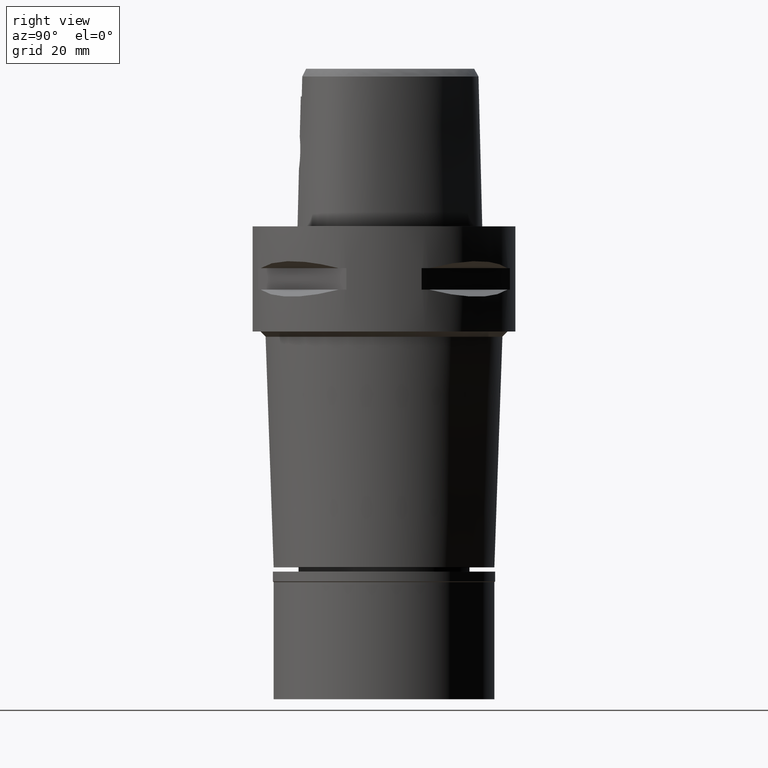
[diagram: clean part render]
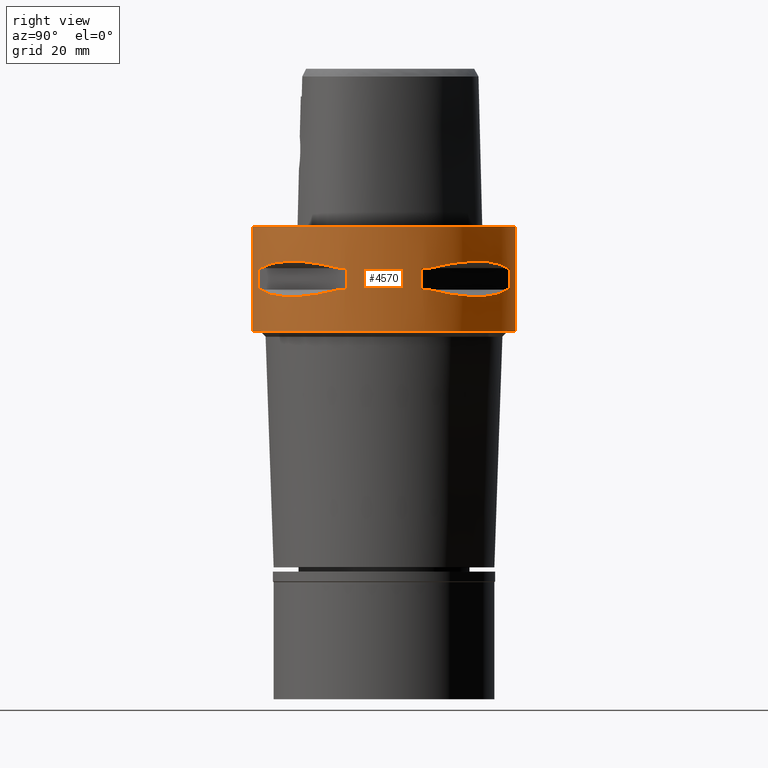
[diagram: same view with one face highlighted and labeled with its STEP entity id]
A machine part, right view. The second image highlights one B-rep face of the part: STEP entity #4570.
In plain terms, the highlighted cylindrical surface (partial cylindrical patch) has radius 25 mm, axis along (0, 0, -1).
Its self-contained STEP definition (entity closure, byte-faithful):
#9 = CARTESIAN_POINT ( 'NONE',  ( 21.20561591939435786, 13.24197703503935486, -13.00691327926270446 ) ) ;
#40 = CIRCLE ( 'NONE', #4211, 24.99999999999999645 ) ;
#85 = B_SPLINE_CURVE_WITH_KNOTS ( 'NONE', 3,
 ( #3754, #4079, #269, #3355, #4123, #9, #699, #4103, #3704, #4867, #3007, #4817, #2986, #2521, #1889, #1051, #1021, #1104, #4030, #298, #1496, #1075, #2593, #4491 ),
 .UNSPECIFIED., .F., .F.,
 ( 4, 1, 1, 1, 1, 1, 2, 2, 2, 1, 1, 1, 1, 1, 2, 2, 4 ),
 ( 0.0000000000000000000, 0.1249999999999982236, 0.1874999999999974465, 0.2187499999999970302, 0.2343749999999969469, 0.2421874999999968081, 0.2460937499999968359, 0.2499999999999968914, 0.4999999999999973355, 0.6249999999999973355, 0.6874999999999976685, 0.7187499999999978906, 0.7343749999999980016, 0.7421874999999980016, 0.7460937499999978906, 0.7499999999999978906, 1.000000000000000000 ),
 .UNSPECIFIED. ) ;
#216 = EDGE_CURVE ( 'NONE', #3294, #2369, #1429, .T. ) ;
#221 = CARTESIAN_POINT ( 'NONE',  ( 0.0000000000000000000, 1.275163479612000028E-14, -12.05000000000000071 ) ) ;
#238 = VERTEX_POINT ( 'NONE', #3075 ) ;
#269 = CARTESIAN_POINT ( 'NONE',  ( 22.58788056560981516, 10.78455809748034788, -12.56798337783676267 ) ) ;
#278 = EDGE_CURVE ( 'NONE', #2553, #3486, #4148, .T. ) ;
#298 = CARTESIAN_POINT ( 'NONE',  ( 13.62920640916679993, 20.95817024473859291, -13.06397973560673265 ) ) ;
#311 = CARTESIAN_POINT ( 'NONE',  ( 10.36314631865839964, -22.82438450743505598, -7.507504930511911923 ) ) ;
#335 = CARTESIAN_POINT ( 'NONE',  ( 20.56020460723486565, -14.22535762328174691, -13.14488865845287080 ) ) ;
#346 = DIRECTION ( 'NONE',  ( 0.0000000000000000000, 0.0000000000000000000, 1.000000000000000000 ) ) ;
#352 = CARTESIAN_POINT ( 'NONE',  ( 22.82438450745431524, 10.36314631860615876, -7.507504930525397135 ) ) ;
#391 = CIRCLE ( 'NONE', #4401, 24.99999999999999645 ) ;
#406 = CARTESIAN_POINT ( 'NONE',  ( 16.42437865151178045, 18.93096040781560063, -6.622496303226939496 ) ) ;
#535 = AXIS2_PLACEMENT_3D ( 'NONE', #4347, #4269, #4639 ) ;
#564 = CARTESIAN_POINT ( 'NONE',  ( 0.0000000000000000000, 1.275163479612000028E-14, -12.05000000000000071 ) ) ;
#609 = CARTESIAN_POINT ( 'NONE',  ( 7.159921374230999724, 23.95277699797999915, -12.05000000000000071 ) ) ;
#611 = ORIENTED_EDGE ( 'NONE', *, *, #2390, .T. ) ;
#620 = DIRECTION ( 'NONE',  ( 0.9581110799190402094, -0.2863968549694120291, 0.0000000000000000000 ) ) ;
#626 = LINE ( 'NONE', #3575, #2889 ) ;
#634 = ORIENTED_EDGE ( 'NONE', *, *, #278, .F. ) ;
#643 = DIRECTION ( 'NONE',  ( 0.9382863520558295534, 0.3458593956303108730, 0.0000000000000000000 ) ) ;
#657 = ORIENTED_EDGE ( 'NONE', *, *, #4472, .T. ) ;
#658 = CARTESIAN_POINT ( 'NONE',  ( 11.99631184318432275, -22.00754773654066199, -7.175632472871789069 ) ) ;
#672 = CARTESIAN_POINT ( 'NONE',  ( 8.646484890751999330, 23.45715880140000209, -12.05000000000000071 ) ) ;
#699 = CARTESIAN_POINT ( 'NONE',  ( 21.09754014381971388, 13.41274673326716282, -13.03250796600833716 ) ) ;
#713 = CARTESIAN_POINT ( 'NONE',  ( 10.78455809745186755, -22.58788056562029922, -12.56798337782941566 ) ) ;
#725 = CARTESIAN_POINT ( 'NONE',  ( 0.0000000000000000000, 1.275163479612000028E-14, -7.950000000000000178 ) ) ;
#753 = CARTESIAN_POINT ( 'NONE',  ( 15.02698525050126044, 20.06074199764951871, -6.733118915116992120 ) ) ;
#760 = CARTESIAN_POINT ( 'NONE',  ( 16.43106916202457057, -18.92421359264944769, -13.37747608848233760 ) ) ;
#767 = CARTESIAN_POINT ( 'NONE',  ( 0.0000000000000000000, 1.275163479612000028E-14, -7.950000000000000178 ) ) ;
#773 = CARTESIAN_POINT ( 'NONE',  ( 23.45715880140000209, 8.646484890751999330, -7.949999999998999201 ) ) ;
#780 = CIRCLE ( 'NONE', #4627, 25.00000000000000000 ) ;
#805 = CARTESIAN_POINT ( 'NONE',  ( 13.48572973711064193, -21.05082155772163688, -13.04323036965292637 ) ) ;
#863 = DIRECTION ( 'NONE',  ( 0.2863968549694120291, 0.9581110799190402094, 0.0000000000000000000 ) ) ;
#866 = EDGE_CURVE ( 'NONE', #1522, #4118, #948, .T. ) ;
#884 = DIRECTION ( 'NONE',  ( 0.0000000000000000000, 0.0000000000000000000, -1.000000000000000000 ) ) ;
#934 = VECTOR ( 'NONE', #3006, 1000.000000000000000 ) ;
#948 = LINE ( 'NONE', #2559, #2480 ) ;
#951 = EDGE_CURVE ( 'NONE', #1349, #1798, #1828, .T. ) ;
#952 = ORIENTED_EDGE ( 'NONE', *, *, #866, .T. ) ;
#1008 = EDGE_CURVE ( 'NONE', #1715, #2778, #2840, .T. ) ;
#1021 = CARTESIAN_POINT ( 'NONE',  ( 13.90573822668135406, 20.77616787493428774, -13.10257122103294058 ) ) ;
#1051 = CARTESIAN_POINT ( 'NONE',  ( 14.22535762328483067, 20.56020460723039278, -13.14488865845230592 ) ) ;
#1075 = CARTESIAN_POINT ( 'NONE',  ( 12.03062603423778754, 21.99328990739221013, -12.83394786307672675 ) ) ;
#1104 = CARTESIAN_POINT ( 'NONE',  ( 13.74471461761685198, 20.88268233906084248, -13.08031795579737455 ) ) ;
#1114 = CARTESIAN_POINT ( 'NONE',  ( 20.88268233906207172, -13.74471461761599400, -13.08031795579753087 ) ) ;
#1124 = CARTESIAN_POINT ( 'NONE',  ( 0.0000000000000000000, 1.275163479612000028E-14, -7.950000000000000178 ) ) ;
#1136 = CARTESIAN_POINT ( 'NONE',  ( 20.77616787493668937, -13.90573822667970916, -13.10257122103325145 ) ) ;
#1248 = CARTESIAN_POINT ( 'NONE',  ( 0.0000000000000000000, 1.275163479612000028E-14, -7.950000000000000178 ) ) ;
#1252 = ORIENTED_EDGE ( 'NONE', *, *, #2179, .F. ) ;
#1291 = CARTESIAN_POINT ( 'NONE',  ( 0.0000000000000000000, -25.00000000000000000, -20.00000000000000000 ) ) ;
#1292 = EDGE_CURVE ( 'NONE', #2553, #2476, #2865, .T. ) ;
#1340 = CARTESIAN_POINT ( 'NONE',  ( 0.0000000000000000000, 25.00000000000000000, 0.0000000000000000000 ) ) ;
#1349 = VERTEX_POINT ( 'NONE', #4506 ) ;
#1351 = CARTESIAN_POINT ( 'NONE',  ( 20.06074199769976829, -15.02698525043415145, -6.733118915137214167 ) ) ;
#1379 = ORIENTED_EDGE ( 'NONE', *, *, #2713, .T. ) ;
#1423 = FACE_BOUND ( 'NONE', #3070, .T. ) ;
#1429 = LINE ( 'NONE', #2549, #934 ) ;
#1434 = ORIENTED_EDGE ( 'NONE', *, *, #3957, .T. ) ;
#1496 = CARTESIAN_POINT ( 'NONE',  ( 13.60713573003037880, 20.97251445226597966, -13.06082541678103404 ) ) ;
#1519 = DIRECTION ( 'NONE',  ( 0.3458593956303108730, 0.9382863520558295534, 0.0000000000000000000 ) ) ;
#1522 = VERTEX_POINT ( 'NONE', #4693 ) ;
#1554 = CARTESIAN_POINT ( 'NONE',  ( 18.30096971348435630, -17.05439749817190176, -13.37751056790094850 ) ) ;
#1563 = CARTESIAN_POINT ( 'NONE',  ( 7.159921374230999724, -23.95277699797999915, -7.950000000000000178 ) ) ;
#1612 = ORIENTED_EDGE ( 'NONE', *, *, #2851, .T. ) ;
#1641 = VERTEX_POINT ( 'NONE', #3236 ) ;
#1689 = EDGE_LOOP ( 'NONE', ( #2679, #1943, #4505, #3856, #4812, #634, #4090, #2241 ) ) ;
#1709 = B_SPLINE_CURVE_WITH_KNOTS ( 'NONE', 3,
 ( #2322, #352, #2709, #4497, #4128, #406, #753, #3760, #3080, #3361 ),
 .UNSPECIFIED., .F., .F.,
 ( 4, 2, 2, 2, 4 ),
 ( 0.0000000000000000000, 0.2500000000000000000, 0.5000000000000000000, 0.7500000000000000000, 1.000000000000000000 ),
 .UNSPECIFIED. ) ;
#1715 = VERTEX_POINT ( 'NONE', #3583 ) ;
#1716 = CARTESIAN_POINT ( 'NONE',  ( 23.45715880140000209, -8.646484890751999330, -7.949999999998999201 ) ) ;
#1732 = DIRECTION ( 'NONE',  ( 0.0000000000000000000, 0.0000000000000000000, -1.000000000000000000 ) ) ;
#1738 = CARTESIAN_POINT ( 'NONE',  ( 23.45715880140000209, -8.646484890751999330, -7.949999999998999201 ) ) ;
#1742 = EDGE_CURVE ( 'NONE', #2476, #2164, #2649, .T. ) ;
#1746 = CARTESIAN_POINT ( 'NONE',  ( 23.95277699797999915, -7.159921374230999724, -12.05000000000000071 ) ) ;
#1783 = FACE_OUTER_BOUND ( 'NONE', #2607, .T. ) ;
#1798 = VERTEX_POINT ( 'NONE', #4773 ) ;
#1806 = DIRECTION ( 'NONE',  ( 0.0000000000000000000, 0.0000000000000000000, -1.000000000000000000 ) ) ;
#1813 = AXIS2_PLACEMENT_3D ( 'NONE', #4387, #4365, #643 ) ;
#1828 = LINE ( 'NONE', #609, #3736 ) ;
#1849 = CARTESIAN_POINT ( 'NONE',  ( 23.45715880140000209, -8.646484890751999330, -12.05000000000000071 ) ) ;
#1874 = CARTESIAN_POINT ( 'NONE',  ( 19.18226349639588690, -16.07509500018327131, -13.33749867752016449 ) ) ;
#1889 = CARTESIAN_POINT ( 'NONE',  ( 14.85488513038957592, 20.11654071401955335, -13.22076716108393413 ) ) ;
#1922 = CARTESIAN_POINT ( 'NONE',  ( 15.06560254765663132, -20.02826730455345583, -13.27075471794622885 ) ) ;
#1934 = CIRCLE ( 'NONE', #4137, 24.99999999999999645 ) ;
#1940 = EDGE_CURVE ( 'NONE', #3692, #4454, #1954, .T. ) ;
#1943 = ORIENTED_EDGE ( 'NONE', *, *, #1008, .F. ) ;
#1954 = B_SPLINE_CURVE_WITH_KNOTS ( 'NONE', 3,
 ( #2557, #4184, #713, #2267, #3393, #2972, #3739, #805, #2219, #4854, #1922, #760, #1554, #1874, #3716, #335, #1136, #1114, #3340, #3439, #3369, #4457, #4478, #1849 ),
 .UNSPECIFIED., .F., .F.,
 ( 4, 1, 1, 1, 1, 1, 2, 2, 2, 1, 1, 1, 1, 1, 2, 2, 4 ),
 ( 0.0000000000000000000, 0.1250000000000068834, 0.1875000000000101308, 0.2187500000000117406, 0.2343750000000125733, 0.2421875000000129341, 0.2460937500000130174, 0.2500000000000131006, 0.5000000000000111022, 0.6250000000000101030, 0.6875000000000099920, 0.7187500000000099920, 0.7343750000000099920, 0.7421875000000098810, 0.7460937500000098810, 0.7500000000000098810, 1.000000000000000000 ),
 .UNSPECIFIED. ) ;
#2083 = CARTESIAN_POINT ( 'NONE',  ( 15.02693924554282034, -20.06077645869683579, -6.733132781285452673 ) ) ;
#2108 = DIRECTION ( 'NONE',  ( 0.9382863520558295534, -0.3458593956303108730, 0.0000000000000000000 ) ) ;
#2121 = CIRCLE ( 'NONE', #535, 25.00000000000000000 ) ;
#2143 = CARTESIAN_POINT ( 'NONE',  ( 18.93096040785499667, -16.42437865147237730, -6.622496303240420268 ) ) ;
#2164 = VERTEX_POINT ( 'NONE', #1738 ) ;
#2167 = DIRECTION ( 'NONE',  ( 0.0000000000000000000, 0.0000000000000000000, -1.000000000000000000 ) ) ;
#2179 = EDGE_CURVE ( 'NONE', #1641, #238, #626, .T. ) ;
#2201 = AXIS2_PLACEMENT_3D ( 'NONE', #2876, #1806, #3302 ) ;
#2219 = CARTESIAN_POINT ( 'NONE',  ( 13.53433973752400554, -21.01958685664054372, -13.05032380590162333 ) ) ;
#2241 = ORIENTED_EDGE ( 'NONE', *, *, #1742, .T. ) ;
#2253 = DIRECTION ( 'NONE',  ( 0.9581110799190402094, 0.2863968549694120291, 0.0000000000000000000 ) ) ;
#2267 = CARTESIAN_POINT ( 'NONE',  ( 12.20403021317722292, -21.82791133048418786, -12.83722430138600323 ) ) ;
#2316 = DIRECTION ( 'NONE',  ( 0.0000000000000000000, 0.0000000000000000000, -1.000000000000000000 ) ) ;
#2322 = CARTESIAN_POINT ( 'NONE',  ( 23.45715880140000209, 8.646484890751999330, -7.949999999998999201 ) ) ;
#2332 = DIRECTION ( 'NONE',  ( 0.0000000000000000000, 0.0000000000000000000, 1.000000000000000000 ) ) ;
#2369 = VERTEX_POINT ( 'NONE', #3114 ) ;
#2390 = EDGE_CURVE ( 'NONE', #3294, #1522, #780, .T. ) ;
#2472 = CARTESIAN_POINT ( 'NONE',  ( 16.42437865147233111, -18.93096040785503220, -6.622505547239580181 ) ) ;
#2476 = VERTEX_POINT ( 'NONE', #2947 ) ;
#2480 = VECTOR ( 'NONE', #2167, 1000.000000000000000 ) ;
#2521 = CARTESIAN_POINT ( 'NONE',  ( 16.07509500019029502, 19.18226349638565509, -13.33749867751885532 ) ) ;
#2545 = CARTESIAN_POINT ( 'NONE',  ( 0.0000000000000000000, 1.275163479612000028E-14, 4.125000000000000000 ) ) ;
#2549 = CARTESIAN_POINT ( 'NONE',  ( 0.0000000000000000000, 25.00000000000000000, 0.0000000000000000000 ) ) ;
#2553 = VERTEX_POINT ( 'NONE', #4043 ) ;
#2557 = CARTESIAN_POINT ( 'NONE',  ( 8.646484890756999775, -23.45715880140000209, -12.05000000000000071 ) ) ;
#2559 = CARTESIAN_POINT ( 'NONE',  ( 0.0000000000000000000, -25.00000000000000000, 0.0000000000000000000 ) ) ;
#2593 = CARTESIAN_POINT ( 'NONE',  ( 10.38516041958474645, 22.81626994451295332, -12.49816953211793802 ) ) ;
#2607 = EDGE_LOOP ( 'NONE', ( #611, #952, #1379, #4879 ) ) ;
#2649 = B_SPLINE_CURVE_WITH_KNOTS ( 'NONE', 3,
 ( #2867, #311, #658, #2083, #2472, #2143, #1351, #3613, #4040, #1716 ),
 .UNSPECIFIED., .F., .F.,
 ( 4, 2, 2, 2, 4 ),
 ( 0.0000000000000000000, 0.2500000000000000000, 0.5000000000000000000, 0.7500000000000000000, 1.000000000000000000 ),
 .UNSPECIFIED. ) ;
#2653 = EDGE_CURVE ( 'NONE', #3692, #3486, #3522, .T. ) ;
#2679 = ORIENTED_EDGE ( 'NONE', *, *, #2696, .T. ) ;
#2696 = EDGE_CURVE ( 'NONE', #2164, #2778, #4795, .T. ) ;
#2709 = CARTESIAN_POINT ( 'NONE',  ( 22.00754773658079344, 11.99631184311074428, -7.175632472892017333 ) ) ;
#2713 = EDGE_CURVE ( 'NONE', #4118, #2369, #2121, .T. ) ;
#2747 = DIRECTION ( 'NONE',  ( 0.0000000000000000000, 0.0000000000000000000, -1.000000000000000000 ) ) ;
#2777 = AXIS2_PLACEMENT_3D ( 'NONE', #767, #2332, #4206 ) ;
#2778 = VERTEX_POINT ( 'NONE', #4741 ) ;
#2820 = DIRECTION ( 'NONE',  ( 0.0000000000000000000, 1.000000000000000000, 0.0000000000000000000 ) ) ;
#2840 = LINE ( 'NONE', #1746, #4209 ) ;
#2851 = EDGE_CURVE ( 'NONE', #4727, #4303, #1709, .T. ) ;
#2854 = CARTESIAN_POINT ( 'NONE',  ( 7.159921374230999724, -23.95277699797999915, -12.05000000000000071 ) ) ;
#2865 = CIRCLE ( 'NONE', #2777, 24.99999999999999645 ) ;
#2867 = CARTESIAN_POINT ( 'NONE',  ( 8.646484890751999330, -23.45715880140000209, -7.949999999998999201 ) ) ;
#2876 = CARTESIAN_POINT ( 'NONE',  ( 0.0000000000000000000, 1.275163479612000028E-14, -12.05000000000000071 ) ) ;
#2889 = VECTOR ( 'NONE', #3977, 1000.000000000000000 ) ;
#2896 = DIRECTION ( 'NONE',  ( 0.0000000000000000000, 0.0000000000000000000, 1.000000000000000000 ) ) ;
#2910 = CYLINDRICAL_SURFACE ( 'NONE', #3034, 25.00000000000000000 ) ;
#2947 = CARTESIAN_POINT ( 'NONE',  ( 8.646484890751999330, -23.45715880140000209, -7.949999999998999201 ) ) ;
#2972 = CARTESIAN_POINT ( 'NONE',  ( 13.24197703503267931, -21.20561591939681634, -13.00691327926098495 ) ) ;
#2986 = CARTESIAN_POINT ( 'NONE',  ( 17.05439749817592343, 18.30096971347850499, -13.37751056790020598 ) ) ;
#3006 = DIRECTION ( 'NONE',  ( 0.0000000000000000000, 0.0000000000000000000, -1.000000000000000000 ) ) ;
#3007 = CARTESIAN_POINT ( 'NONE',  ( 20.02826730452214932, 15.06560254769159712, -13.27075471794772277 ) ) ;
#3034 = AXIS2_PLACEMENT_3D ( 'NONE', #2545, #3681, #3308 ) ;
#3070 = EDGE_LOOP ( 'NONE', ( #657, #4070, #4827, #4565, #1434, #1252, #4252, #1612 ) ) ;
#3075 = CARTESIAN_POINT ( 'NONE',  ( 23.95277699797999915, 7.159921374230999724, -12.05000000000000071 ) ) ;
#3080 = CARTESIAN_POINT ( 'NONE',  ( 10.36318218122983481, 22.82437128822192207, -7.507495686399606960 ) ) ;
#3114 = CARTESIAN_POINT ( 'NONE',  ( 0.0000000000000000000, 25.00000000000000000, -20.00000000000000000 ) ) ;
#3190 = CARTESIAN_POINT ( 'NONE',  ( 0.0000000000000000000, 1.275163479612000028E-14, 0.0000000000000000000 ) ) ;
#3236 = CARTESIAN_POINT ( 'NONE',  ( 23.95277699797999915, 7.159921374235000080, -7.950000000000000178 ) ) ;
#3282 = DIRECTION ( 'NONE',  ( 0.0000000000000000000, 0.0000000000000000000, 1.000000000000000000 ) ) ;
#3294 = VERTEX_POINT ( 'NONE', #1340 ) ;
#3302 = DIRECTION ( 'NONE',  ( 0.3458593956303108730, -0.9382863520558295534, 0.0000000000000000000 ) ) ;
#3308 = DIRECTION ( 'NONE',  ( 0.0000000000000000000, -1.000000000000000000, 0.0000000000000000000 ) ) ;
#3340 = CARTESIAN_POINT ( 'NONE',  ( 20.92801700160322298, -13.67544437571097404, -13.07054629644096444 ) ) ;
#3355 = CARTESIAN_POINT ( 'NONE',  ( 21.82791133047632215, 12.20403021319857828, -12.83722430139150994 ) ) ;
#3361 = CARTESIAN_POINT ( 'NONE',  ( 8.646484890751999330, 23.45715880140000209, -7.949999999998999201 ) ) ;
#3369 = CARTESIAN_POINT ( 'NONE',  ( 20.97251445226583755, -13.60713573003076071, -13.06082541678112641 ) ) ;
#3393 = CARTESIAN_POINT ( 'NONE',  ( 12.89853354821786624, -21.41803043592453548, -12.95342092614003349 ) ) ;
#3427 = CARTESIAN_POINT ( 'NONE',  ( 8.646484890756999775, -23.45715880140000209, -12.05000000000000071 ) ) ;
#3439 = CARTESIAN_POINT ( 'NONE',  ( 20.95817024473895174, -13.62920640916654591, -13.06397973560678061 ) ) ;
#3486 = VERTEX_POINT ( 'NONE', #2854 ) ;
#3497 = CIRCLE ( 'NONE', #4286, 25.00000000000001066 ) ;
#3510 = VERTEX_POINT ( 'NONE', #672 ) ;
#3522 = CIRCLE ( 'NONE', #2201, 25.00000000000001066 ) ;
#3527 = CIRCLE ( 'NONE', #1813, 25.00000000000001066 ) ;
#3575 = CARTESIAN_POINT ( 'NONE',  ( 23.95277699797999915, 7.159921374230999724, -7.950000000000000178 ) ) ;
#3583 = CARTESIAN_POINT ( 'NONE',  ( 23.95277699797999915, -7.159921374235000080, -12.05000000000000071 ) ) ;
#3613 = CARTESIAN_POINT ( 'NONE',  ( 22.00752022560862642, -11.99636231257075991, -7.175618606723547899 ) ) ;
#3681 = DIRECTION ( 'NONE',  ( 0.0000000000000000000, 0.0000000000000000000, -1.000000000000000000 ) ) ;
#3692 = VERTEX_POINT ( 'NONE', #3427 ) ;
#3704 = CARTESIAN_POINT ( 'NONE',  ( 21.01958685664017068, 13.53433973752500918, -13.05032380590188446 ) ) ;
#3716 = CARTESIAN_POINT ( 'NONE',  ( 20.11654071402723432, -14.85488513038430192, -13.22076716108491290 ) ) ;
#3736 = VECTOR ( 'NONE', #4830, 1000.000000000000000 ) ;
#3739 = CARTESIAN_POINT ( 'NONE',  ( 13.41274673326371314, -21.09754014382099285, -13.03250796600744721 ) ) ;
#3754 = CARTESIAN_POINT ( 'NONE',  ( 23.45715880140000209, 8.646484890756999775, -12.05000000000000071 ) ) ;
#3760 = CARTESIAN_POINT ( 'NONE',  ( 11.99636231264435615, 22.00752022556853404, -7.175618606703327629 ) ) ;
#3791 = EDGE_CURVE ( 'NONE', #1349, #3510, #391, .T. ) ;
#3856 = ORIENTED_EDGE ( 'NONE', *, *, #1940, .F. ) ;
#3903 = DIRECTION ( 'NONE',  ( 0.0000000000000000000, 0.0000000000000000000, 1.000000000000000000 ) ) ;
#3949 = CARTESIAN_POINT ( 'NONE',  ( 23.45715880140000209, -8.646484890751999330, -12.05000000000000071 ) ) ;
#3957 = EDGE_CURVE ( 'NONE', #4395, #238, #3527, .T. ) ;
#3977 = DIRECTION ( 'NONE',  ( 0.0000000000000000000, 0.0000000000000000000, -1.000000000000000000 ) ) ;
#4030 = CARTESIAN_POINT ( 'NONE',  ( 13.67544437571146609, 20.92801700160250533, -13.07054629644086674 ) ) ;
#4040 = CARTESIAN_POINT ( 'NONE',  ( 22.82437128824116712, -10.36318218117755841, -7.507495686413087732 ) ) ;
#4043 = CARTESIAN_POINT ( 'NONE',  ( 7.159921374235000080, -23.95277699797999915, -7.950000000000000178 ) ) ;
#4070 = ORIENTED_EDGE ( 'NONE', *, *, #951, .F. ) ;
#4079 = CARTESIAN_POINT ( 'NONE',  ( 23.13678124604550845, 9.515641234313701347, -12.27403800213050111 ) ) ;
#4089 = AXIS2_PLACEMENT_3D ( 'NONE', #1248, #3903, #2108 ) ;
#4090 = ORIENTED_EDGE ( 'NONE', *, *, #1292, .T. ) ;
#4103 = CARTESIAN_POINT ( 'NONE',  ( 21.05082155772089436, 13.48572973711263323, -13.04323036965343618 ) ) ;
#4118 = VERTEX_POINT ( 'NONE', #1291 ) ;
#4123 = CARTESIAN_POINT ( 'NONE',  ( 21.41803043591995959, 12.89853354823032738, -12.95342092614324869 ) ) ;
#4128 = CARTESIAN_POINT ( 'NONE',  ( 18.93096040781554024, 16.42437865151185505, -6.622505547253058289 ) ) ;
#4137 = AXIS2_PLACEMENT_3D ( 'NONE', #221, #1732, #620 ) ;
#4148 = LINE ( 'NONE', #1563, #4176 ) ;
#4176 = VECTOR ( 'NONE', #2316, 1000.000000000000000 ) ;
#4184 = CARTESIAN_POINT ( 'NONE',  ( 9.515641234297431694, -23.13678124605150188, -12.27403800212630536 ) ) ;
#4206 = DIRECTION ( 'NONE',  ( 0.2863968549694120291, -0.9581110799190402094, 0.0000000000000000000 ) ) ;
#4209 = VECTOR ( 'NONE', #2896, 1000.000000000000000 ) ;
#4211 = AXIS2_PLACEMENT_3D ( 'NONE', #725, #346, #2253 ) ;
#4252 = ORIENTED_EDGE ( 'NONE', *, *, #4500, .T. ) ;
#4269 = DIRECTION ( 'NONE',  ( 0.0000000000000000000, 0.0000000000000000000, 1.000000000000000000 ) ) ;
#4279 = EDGE_CURVE ( 'NONE', #1715, #4454, #1934, .T. ) ;
#4286 = AXIS2_PLACEMENT_3D ( 'NONE', #1124, #3282, #1519 ) ;
#4290 = CARTESIAN_POINT ( 'NONE',  ( 23.45715880140000209, 8.646484890756999775, -12.05000000000000071 ) ) ;
#4303 = VERTEX_POINT ( 'NONE', #4678 ) ;
#4347 = CARTESIAN_POINT ( 'NONE',  ( 0.0000000000000000000, 1.275163479612000028E-14, -20.00000000000000000 ) ) ;
#4365 = DIRECTION ( 'NONE',  ( 0.0000000000000000000, 0.0000000000000000000, -1.000000000000000000 ) ) ;
#4387 = CARTESIAN_POINT ( 'NONE',  ( 0.0000000000000000000, 1.275163479612000028E-14, -12.05000000000000071 ) ) ;
#4395 = VERTEX_POINT ( 'NONE', #4290 ) ;
#4401 = AXIS2_PLACEMENT_3D ( 'NONE', #564, #884, #863 ) ;
#4454 = VERTEX_POINT ( 'NONE', #3949 ) ;
#4457 = CARTESIAN_POINT ( 'NONE',  ( 21.99328990740119139, -12.03062603421341770, -12.83394786307044022 ) ) ;
#4472 = EDGE_CURVE ( 'NONE', #4303, #1798, #3497, .T. ) ;
#4478 = CARTESIAN_POINT ( 'NONE',  ( 22.81626994452193458, -10.38516041956038727, -12.49816953211166037 ) ) ;
#4491 = CARTESIAN_POINT ( 'NONE',  ( 8.646484890751999330, 23.45715880140000209, -12.05000000000000071 ) ) ;
#4497 = CARTESIAN_POINT ( 'NONE',  ( 20.06077645874710313, 15.02693924547574866, -6.733132781305683601 ) ) ;
#4500 = EDGE_CURVE ( 'NONE', #1641, #4727, #40, .T. ) ;
#4505 = ORIENTED_EDGE ( 'NONE', *, *, #4279, .T. ) ;
#4506 = CARTESIAN_POINT ( 'NONE',  ( 7.159921374235000080, 23.95277699797999915, -12.05000000000000071 ) ) ;
#4553 = EDGE_CURVE ( 'NONE', #4395, #3510, #85, .T. ) ;
#4565 = ORIENTED_EDGE ( 'NONE', *, *, #4553, .F. ) ;
#4570 = ADVANCED_FACE ( 'NONE', ( #1783, #4789, #1423 ), #2910, .T. ) ;
#4627 = AXIS2_PLACEMENT_3D ( 'NONE', #3190, #2747, #2820 ) ;
#4639 = DIRECTION ( 'NONE',  ( 0.0000000000000000000, -1.000000000000000000, 0.0000000000000000000 ) ) ;
#4678 = CARTESIAN_POINT ( 'NONE',  ( 8.646484890751999330, 23.45715880140000209, -7.949999999998999201 ) ) ;
#4693 = CARTESIAN_POINT ( 'NONE',  ( 0.0000000000000000000, -25.00000000000000000, 0.0000000000000000000 ) ) ;
#4727 = VERTEX_POINT ( 'NONE', #773 ) ;
#4741 = CARTESIAN_POINT ( 'NONE',  ( 23.95277699797999915, -7.159921374230999724, -7.950000000000000178 ) ) ;
#4773 = CARTESIAN_POINT ( 'NONE',  ( 7.159921374230999724, 23.95277699797999915, -7.950000000000000178 ) ) ;
#4789 = FACE_BOUND ( 'NONE', #1689, .T. ) ;
#4795 = CIRCLE ( 'NONE', #4089, 25.00000000000001066 ) ;
#4812 = ORIENTED_EDGE ( 'NONE', *, *, #2653, .T. ) ;
#4817 = CARTESIAN_POINT ( 'NONE',  ( 18.92421359264142211, 16.43106916203626611, -13.37747608848383329 ) ) ;
#4827 = ORIENTED_EDGE ( 'NONE', *, *, #3791, .T. ) ;
#4830 = DIRECTION ( 'NONE',  ( 0.0000000000000000000, 0.0000000000000000000, 1.000000000000000000 ) ) ;
#4854 = CARTESIAN_POINT ( 'NONE',  ( 13.55971422200820520, -21.00321793043535479, -13.05400030967370206 ) ) ;
#4867 = CARTESIAN_POINT ( 'NONE',  ( 21.00321793043583796, 13.55971422200765630, -13.05400030967367897 ) ) ;
#4879 = ORIENTED_EDGE ( 'NONE', *, *, #216, .F. ) ;